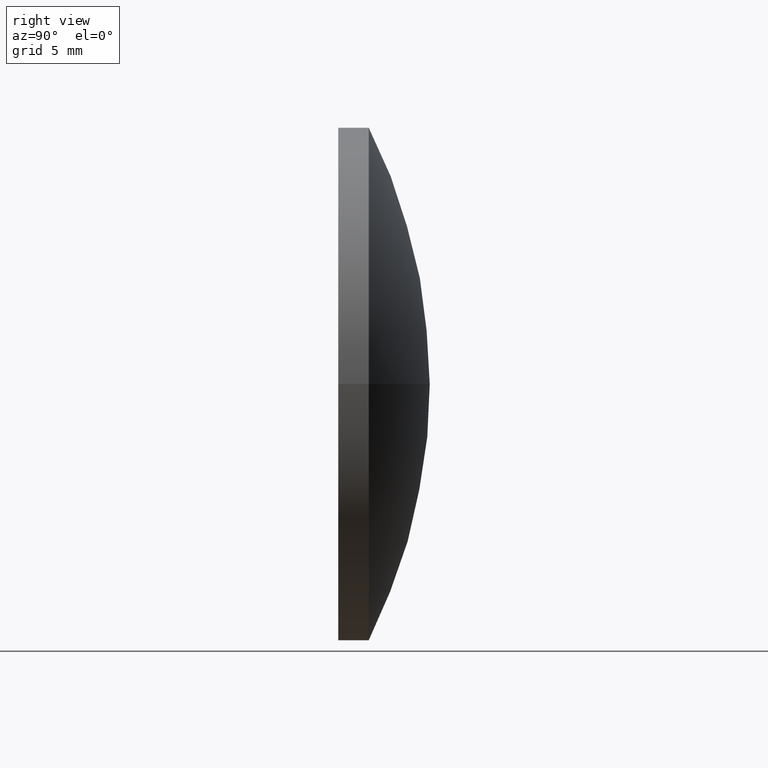
[diagram: clean part render]
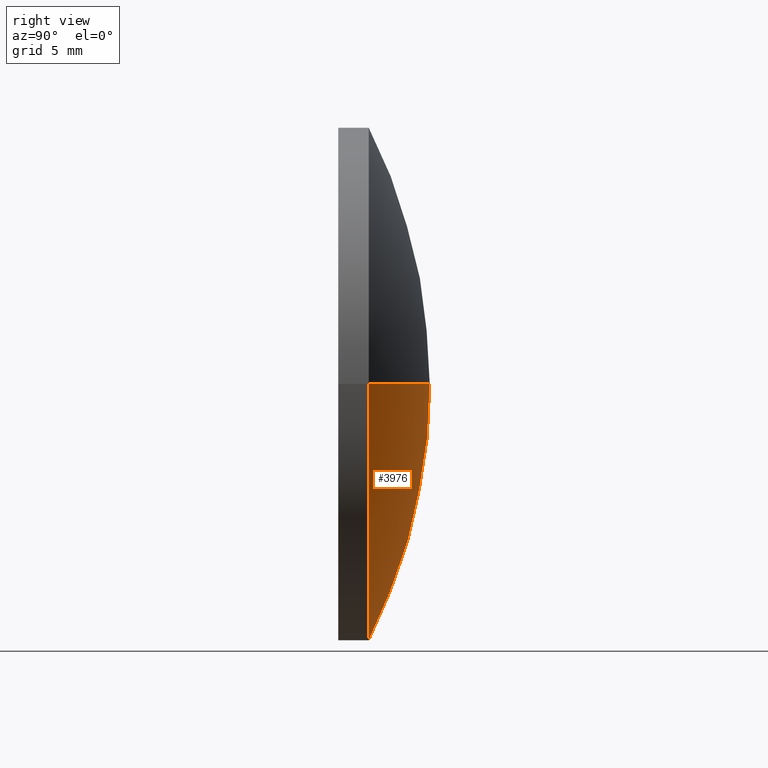
[diagram: same view with one face highlighted and labeled with its STEP entity id]
A machine part, right view. The second image highlights one B-rep face of the part: STEP entity #3976.
In plain terms, the highlighted spherical surface has radius 37.4903 mm.
Its self-contained STEP definition (entity closure, byte-faithful):
#287 = AXIS2_PLACEMENT_3D ( 'NONE', #9967, #3790, #11096 ) ;
#324 = EDGE_CURVE ( 'NONE', #2784, #11816, #10222, .T. ) ;
#766 = DIRECTION ( 'NONE',  ( -5.836103876533815000E-015, -1.000000000000000000, -0.0000000000000000000 ) ) ;
#840 = AXIS2_PLACEMENT_3D ( 'NONE', #2851, #766, #10088 ) ;
#929 = CARTESIAN_POINT ( 'NONE',  ( 1.167220775306751800E-014, -31.49031249999995200, 0.0000000000000000000 ) ) ;
#1229 = CIRCLE ( 'NONE', #2233, 37.49031249999994500 ) ;
#2041 = VERTEX_POINT ( 'NONE', #8274 ) ;
#2102 = DIRECTION ( 'NONE',  ( 1.224646799147353200E-016, -7.147165931888596700E-031, 1.000000000000000000 ) ) ;
#2233 = AXIS2_PLACEMENT_3D ( 'NONE', #929, #2102, #5226 ) ;
#2784 = VERTEX_POINT ( 'NONE', #10176 ) ;
#2851 = CARTESIAN_POINT ( 'NONE',  ( -1.167220775306714700E-014, 2.000000000000093300, 0.0000000000000000000 ) ) ;
#2914 = ORIENTED_EDGE ( 'NONE', *, *, #324, .T. ) ;
#3071 = DIRECTION ( 'NONE',  ( -0.0000000000000000000, 0.0000000000000000000, 1.000000000000000000 ) ) ;
#3790 = DIRECTION ( 'NONE',  ( 0.0000000000000000000, 0.0000000000000000000, -1.000000000000000000 ) ) ;
#3976 = ADVANCED_FACE ( 'NONE', ( #5303 ), #8050, .T. ) ;
#4913 = AXIS2_PLACEMENT_3D ( 'NONE', #12254, #3071, #6041 ) ;
#5167 = EDGE_LOOP ( 'NONE', ( #7898, #2914, #12749 ) ) ;
#5226 = DIRECTION ( 'NONE',  ( 1.000000000000000000, 0.0000000000000000000, -1.224646799147353000E-016 ) ) ;
#5271 = EDGE_CURVE ( 'NONE', #2784, #2041, #1229, .T. ) ;
#5303 = FACE_OUTER_BOUND ( 'NONE', #5167, .T. ) ;
#6041 = DIRECTION ( 'NONE',  ( 1.000000000000000000, -5.922719500538483000E-015, 0.0000000000000000000 ) ) ;
#7898 = ORIENTED_EDGE ( 'NONE', *, *, #5271, .F. ) ;
#8050 = SPHERICAL_SURFACE ( 'NONE', #4913, 37.49031249999994500 ) ;
#8274 = CARTESIAN_POINT ( 'NONE',  ( -16.85000000000001200, 2.000000000000191800, 2.063529856563290600E-015 ) ) ;
#9152 = CARTESIAN_POINT ( 'NONE',  ( 16.84999999999999100, 1.999999999999994900, 0.0000000000000000000 ) ) ;
#9771 = CIRCLE ( 'NONE', #840, 16.85000000000000100 ) ;
#9967 = CARTESIAN_POINT ( 'NONE',  ( 1.167220775306751800E-014, -31.49031249999995200, 0.0000000000000000000 ) ) ;
#10088 = DIRECTION ( 'NONE',  ( 1.000000000000000000, -5.842466306331382200E-015, 0.0000000000000000000 ) ) ;
#10176 = CARTESIAN_POINT ( 'NONE',  ( 2.327651854268892700E-013, 5.999999999999991100, 0.0000000000000000000 ) ) ;
#10222 = CIRCLE ( 'NONE', #287, 37.49031249999994500 ) ;
#11096 = DIRECTION ( 'NONE',  ( -1.000000000000000000, 0.0000000000000000000, 0.0000000000000000000 ) ) ;
#11816 = VERTEX_POINT ( 'NONE', #9152 ) ;
#12254 = CARTESIAN_POINT ( 'NONE',  ( 1.167220775306751800E-014, -31.49031249999995200, 0.0000000000000000000 ) ) ;
#12749 = ORIENTED_EDGE ( 'NONE', *, *, #12858, .F. ) ;
#12858 = EDGE_CURVE ( 'NONE', #2041, #11816, #9771, .T. ) ;